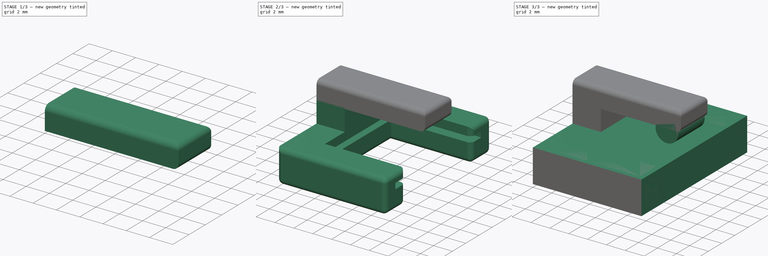
[diagram: build sequence overview — one tinted view per stage of 3, left to right]
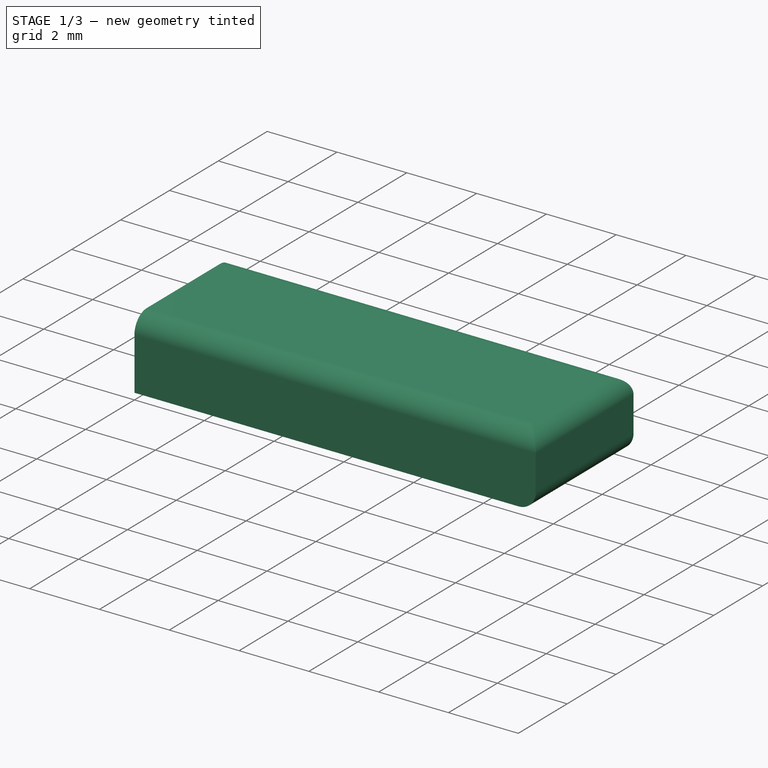
[diagram: stage 1 of 3 — iso view after this stage's code; geometry added in this stage tinted green]
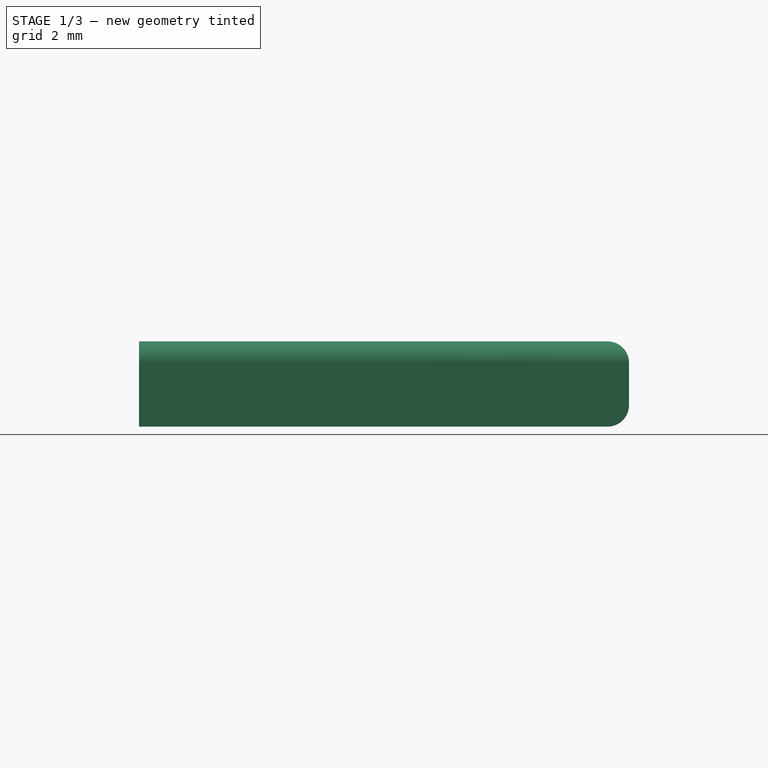
[diagram: stage 1 of 3 — front view after this stage's code; geometry added in this stage tinted green]
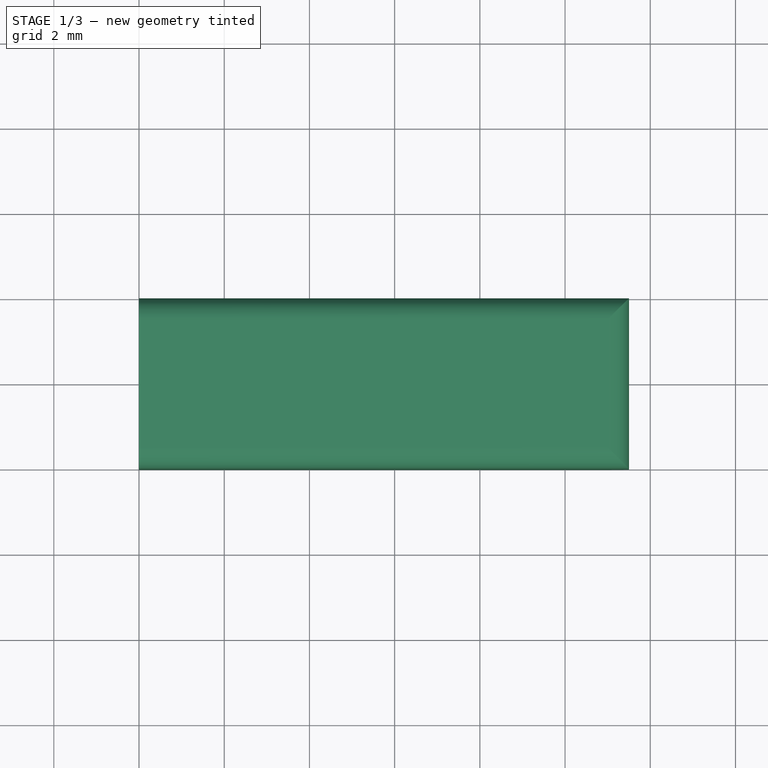
[diagram: stage 1 of 3 — top view after this stage's code; geometry added in this stage tinted green]
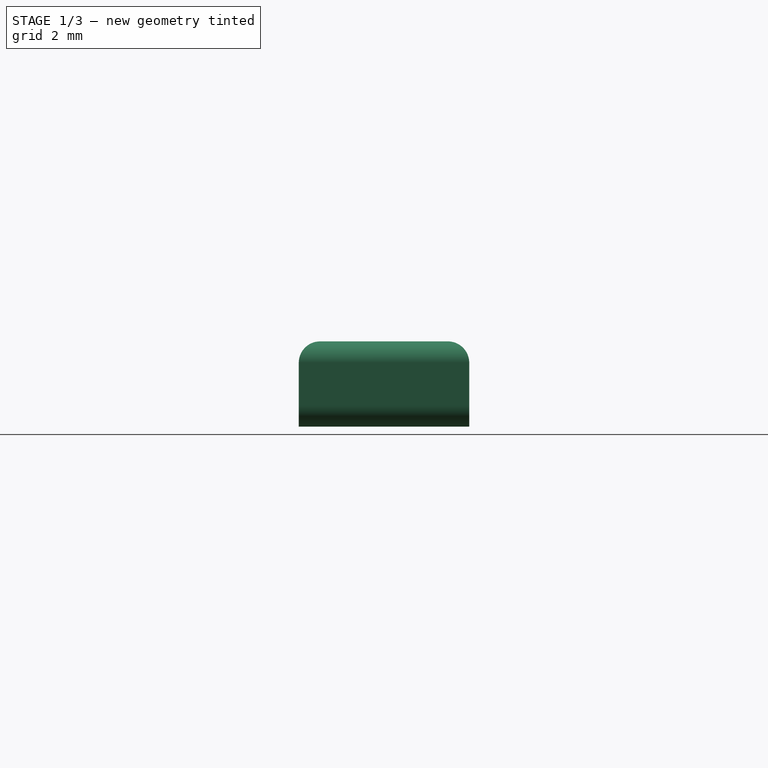
[diagram: stage 1 of 3 — right view after this stage's code; geometry added in this stage tinted green]
FCSTD DOCUMENT  (FreeCAD 0.15R4671 (Git))
Label: prog-adapter
License: CC-BY 3.0
LicenseURL: http://creativecommons.org/licenses/by/3.0/
objects: Part::Box×2, Part::Fillet×2, Part::Cut×1, Sketcher::SketchObject×1, PartDesign::Pad×1, Part::Cylinder×1
note: 9 computed .brp shape members not serialized (recipe doc carries the construction recipe); baked Part::Feature solids carry a one-line shape summary decoded from their .brp

FEATURE [Part::Box] Box004  label="Cube001"
  Height = 2
  Length = 11.5
  Placement = pos=(0,6,5.7) rot=(0,0,1;0rad)
  Width = 4
FEATURE [Part::Fillet] Fillet004
  Base = -> Box004
  Edges = 4 edges r=0.5: [Edge6,Edge8,Edge10,Edge12]
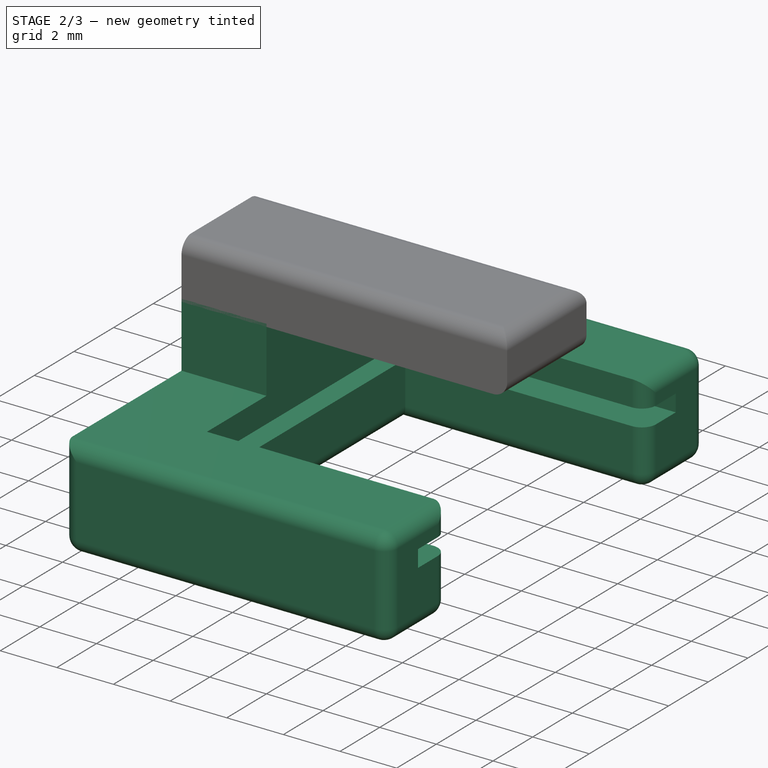
[diagram: stage 2 of 3 — iso view after this stage's code; geometry added in this stage tinted green]
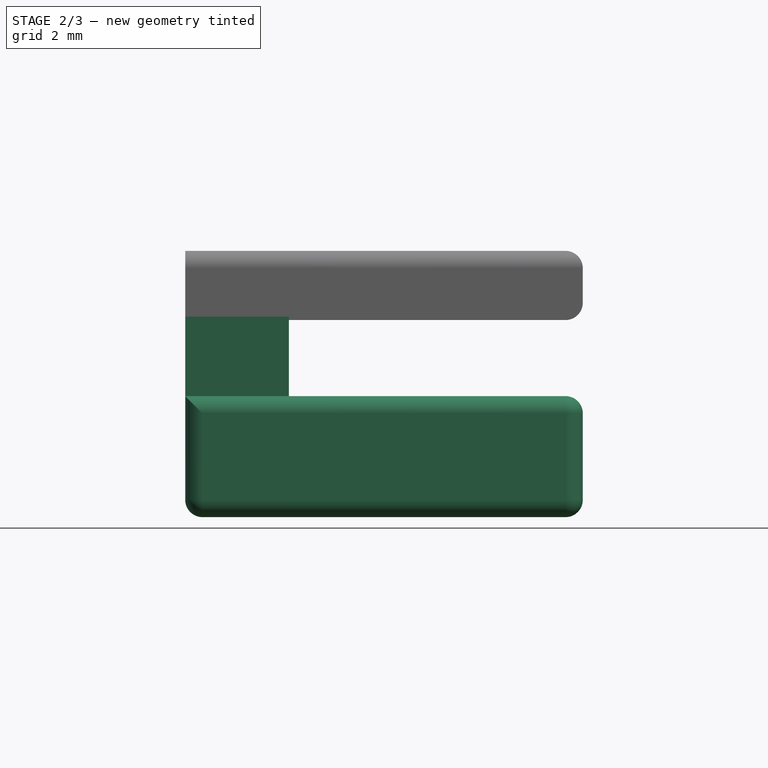
[diagram: stage 2 of 3 — front view after this stage's code; geometry added in this stage tinted green]
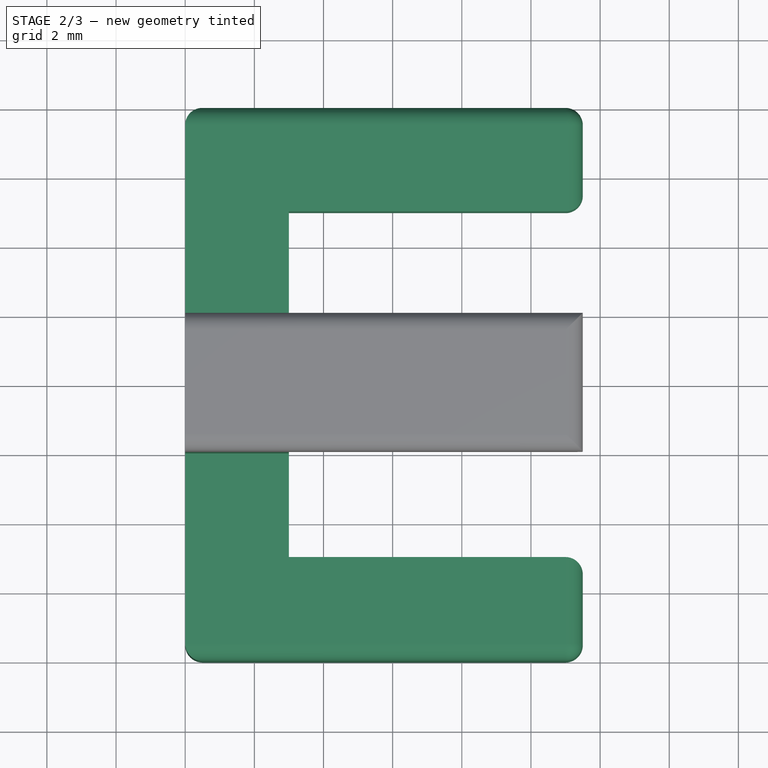
[diagram: stage 2 of 3 — top view after this stage's code; geometry added in this stage tinted green]
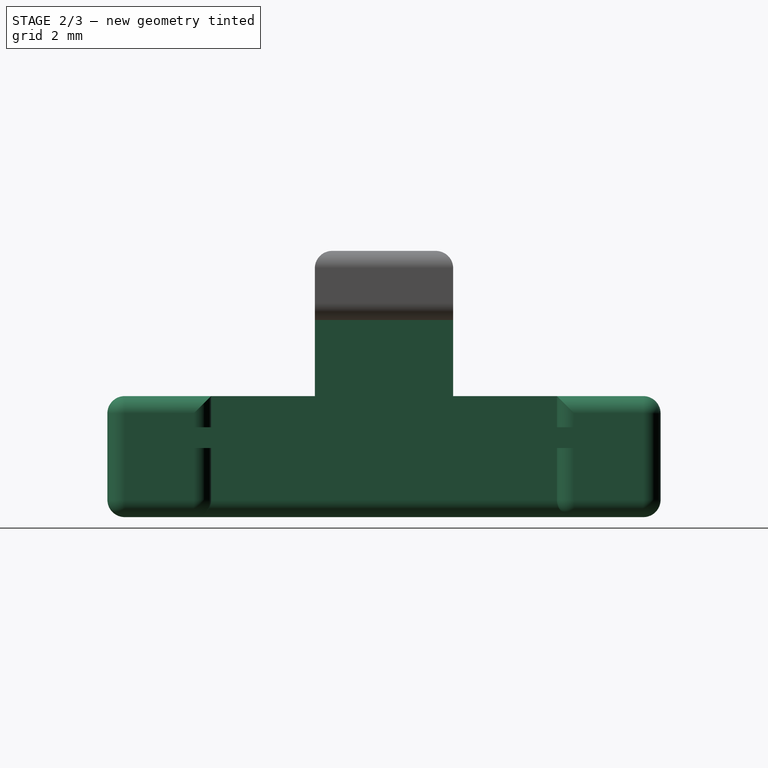
[diagram: stage 2 of 3 — right view after this stage's code; geometry added in this stage tinted green]
FEATURE [Part::Cut] Cut005
FEATURE [Sketcher::SketchObject] Sketch018
  Placement = pos=(0,0,3.5) rot=(0,0,1;0rad)
  Support = -> Cut005 [Face3]
  sketch-geometry (4):
    g0: LineSegment StartX=0 StartY=10 StartZ=0 EndX=3 EndY=10 EndZ=0
    g1: LineSegment StartX=3 StartY=10 StartZ=0 EndX=3 EndY=6 EndZ=0
    g2: LineSegment StartX=3 StartY=6 StartZ=0 EndX=0 EndY=6 EndZ=0
    g3: LineSegment StartX=0 StartY=6 StartZ=0 EndX=0 EndY=10 EndZ=0
  constraints (12):
    c: Coincident(g0,g1)
    c: Coincident(g1,g2)
    c: Coincident(g2,g3)
    c: Coincident(g3,g0)
    c: Horizontal(g0)
    c: Horizontal(g2)
    c: Vertical(g1)
    c: Vertical(g3)
    c: PointOnObject(g0,g-2)
    c: DistanceY(g0,g2) = -4
    c: DistanceY(g-1,g2) = 6
    c: DistanceX(g2,g1) = 3
FEATURE [PartDesign::Pad] Pad008
  Length = 2.3
  Length2 = 1.5
  Sketch = -> Sketch018
  Type = 0
FEATURE [Part::Fillet] Fillet003
  Base = -> Pad008
  Edges = 20 edges r=0.5: [Edge13,Edge17,Edge23,Edge24,Edge26,Edge27,Edge28,Edge29,Edge30,Edge31,Edge35,Edge37,Edge43,Edge46,Edge47,Edge48,Edge49,Edge50,Edge51,Edge52]
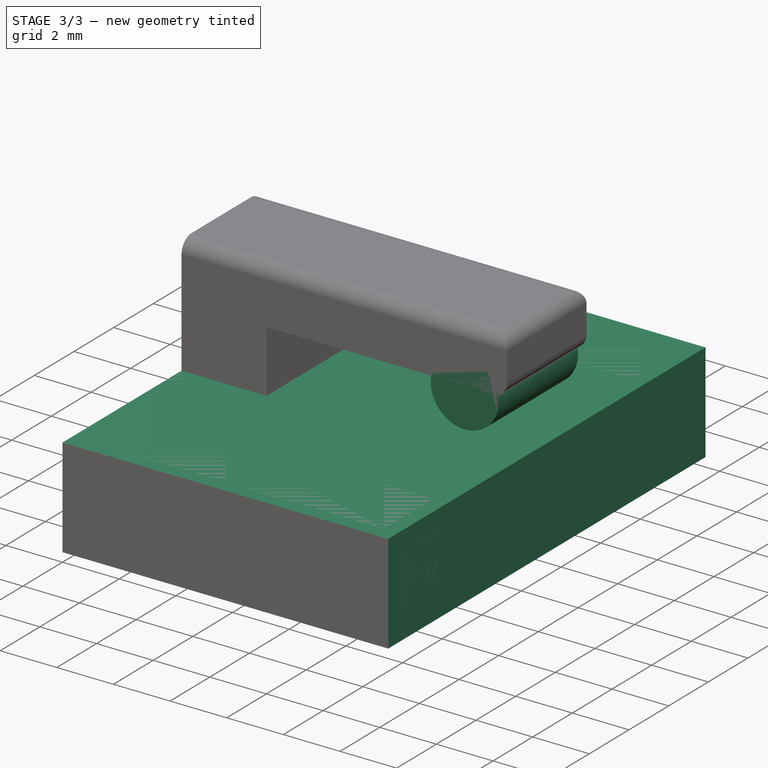
[diagram: stage 3 of 3 — iso view after this stage's code; geometry added in this stage tinted green]
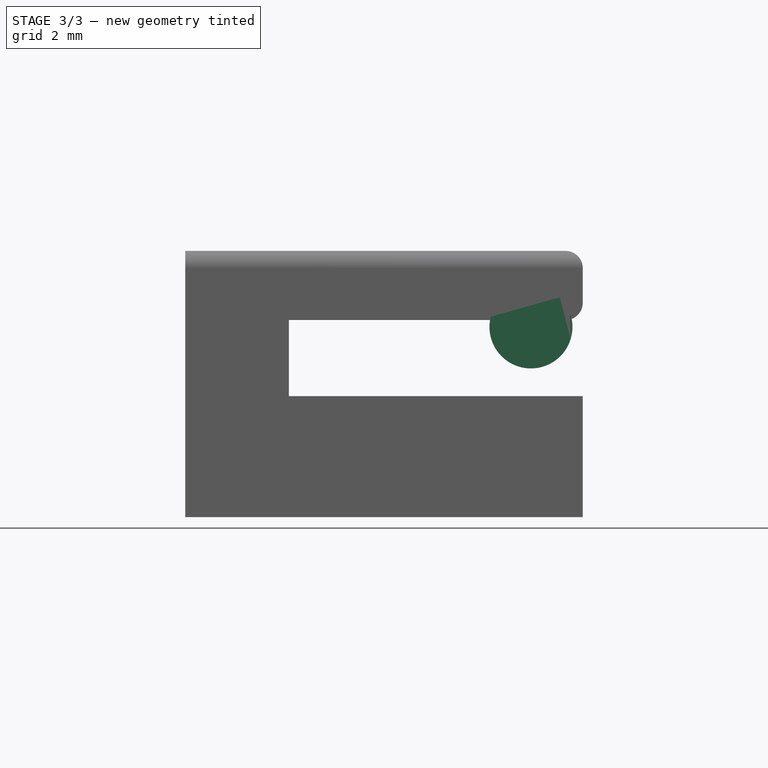
[diagram: stage 3 of 3 — front view after this stage's code; geometry added in this stage tinted green]
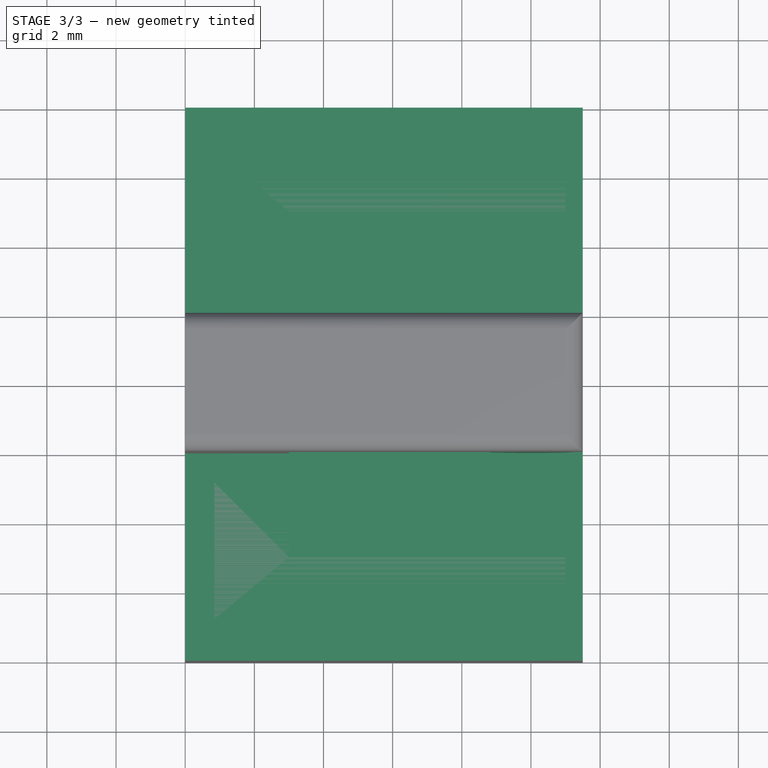
[diagram: stage 3 of 3 — top view after this stage's code; geometry added in this stage tinted green]
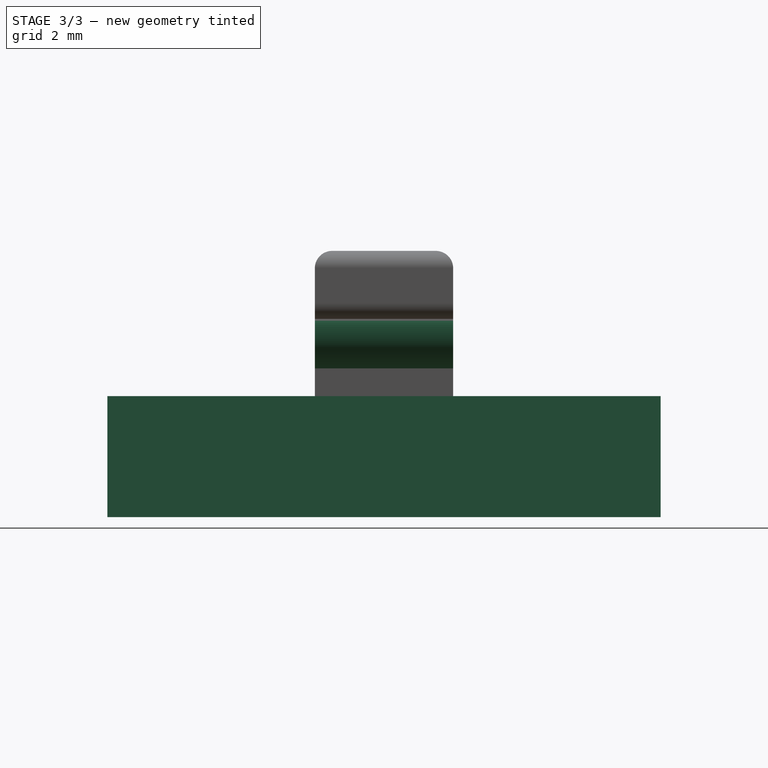
[diagram: stage 3 of 3 — right view after this stage's code; geometry added in this stage tinted green]
FEATURE [Part::Box] Box002  label="ISP"
  Height = 3.5
  Length = 11.5
  Width = 16
FEATURE [Part::Cylinder] Cylinder002
  Angle = 360
  Height = 4
  Placement = pos=(10,10,5.5) rot=(1,0,0;1.5708rad)
  Radius = 1.2
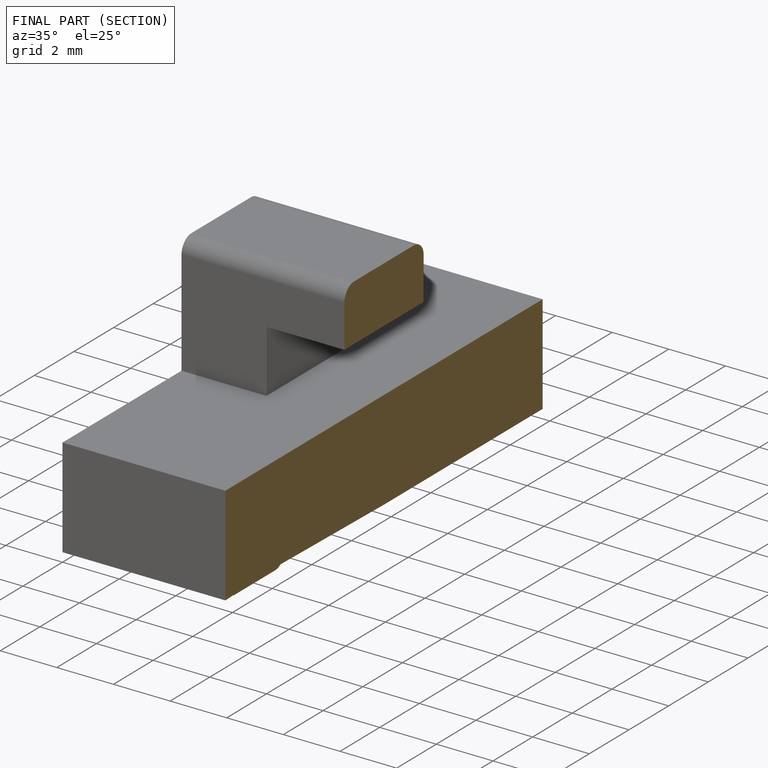
[diagram: finished part — half-section view (interior)]
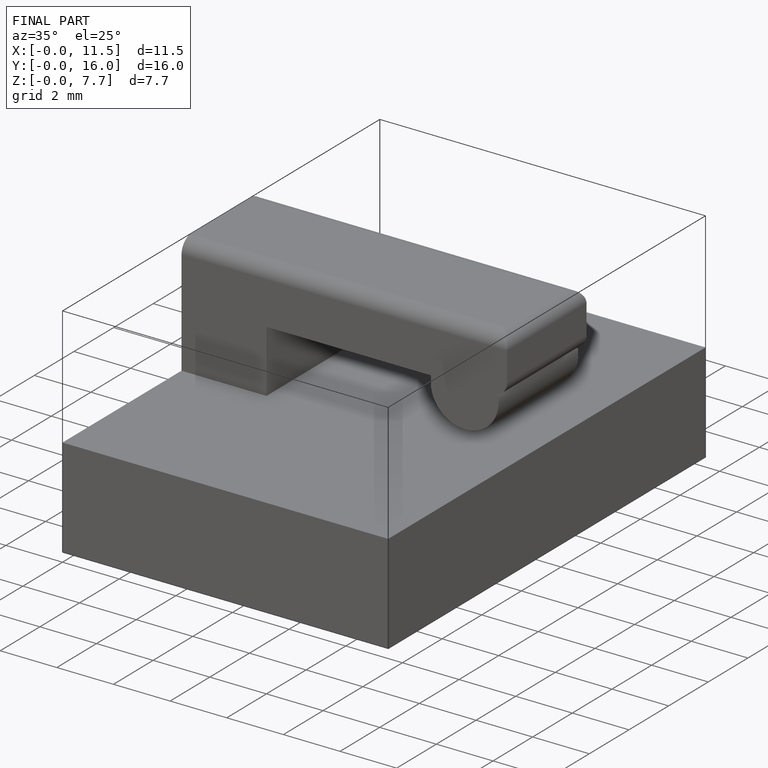
[diagram: finished part — iso view with bounding-box wireframe]
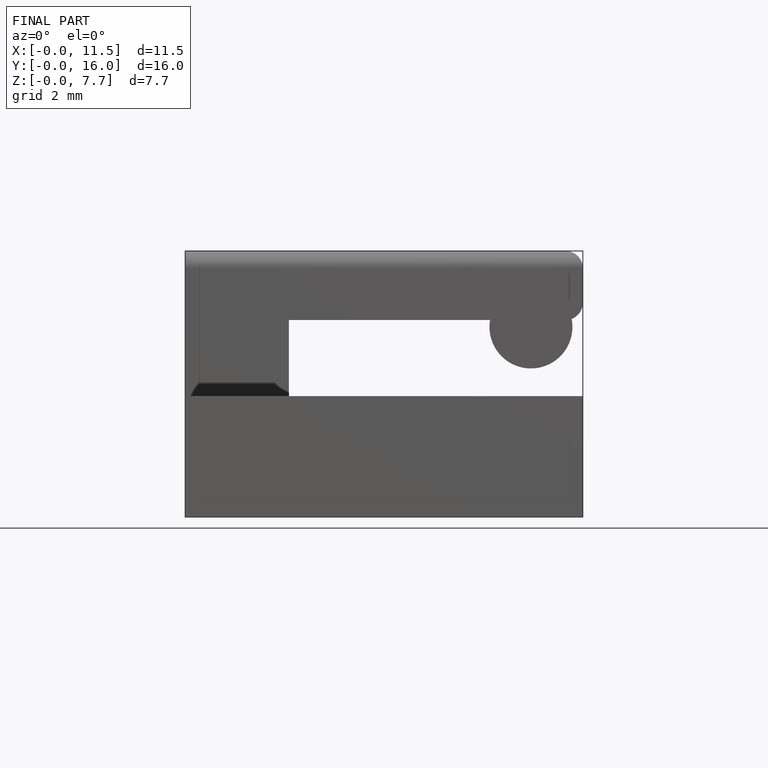
[diagram: finished part — front view with bounding-box wireframe]
